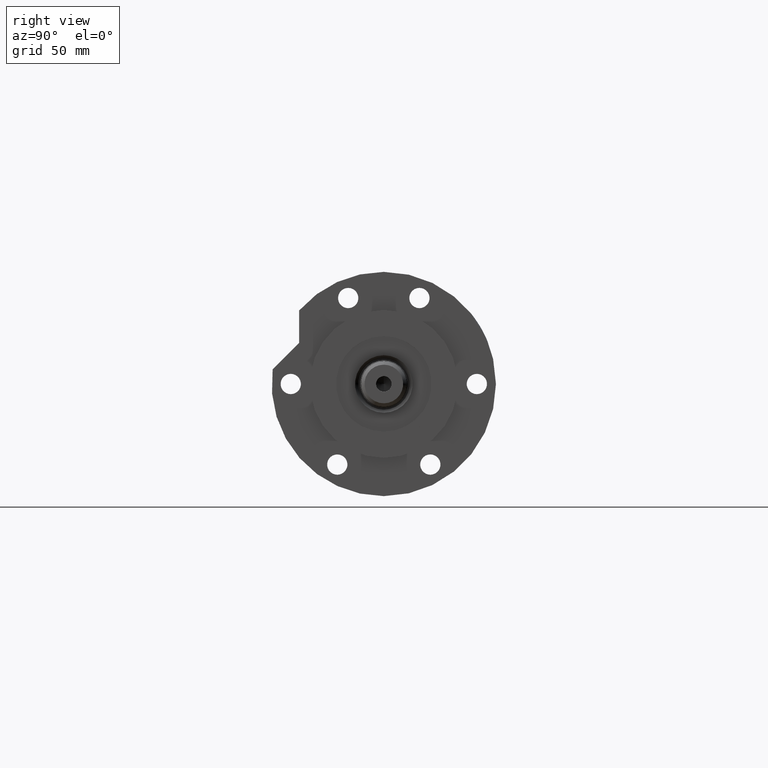
[diagram: clean part render]
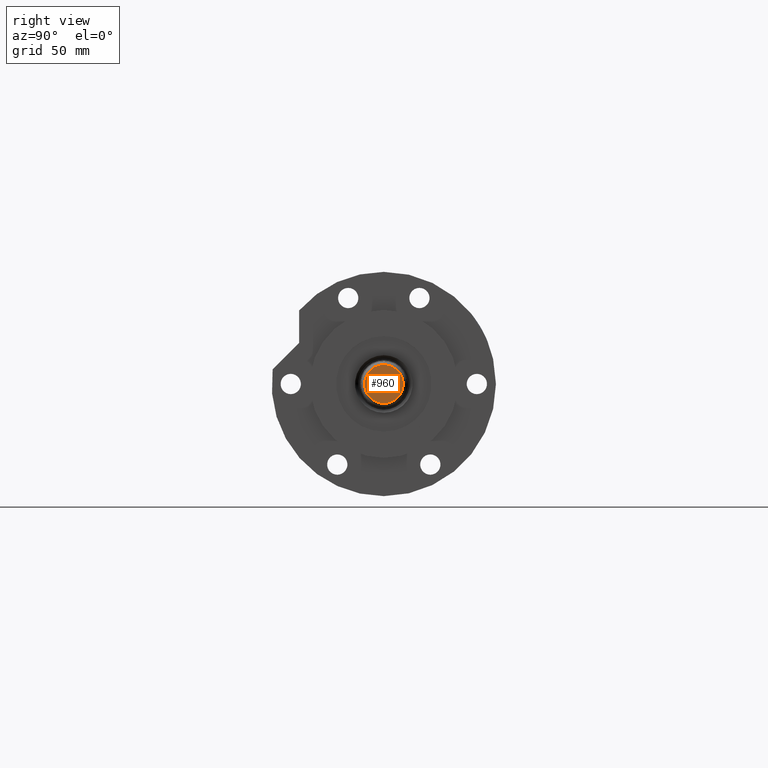
[diagram: same view with one face highlighted and labeled with its STEP entity id]
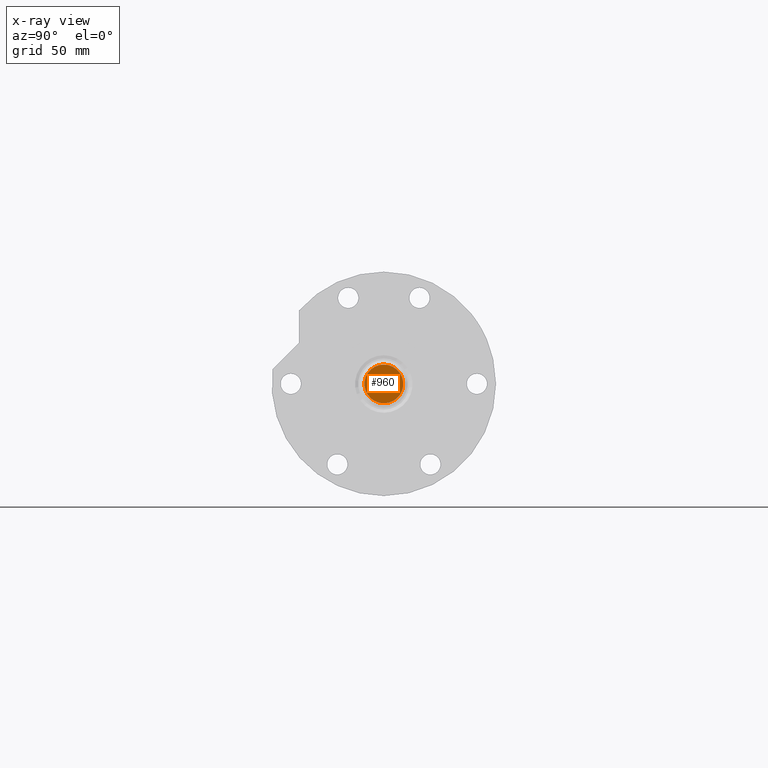
[diagram: x-ray of the same camera — body ghosted, the highlighted face saturated]
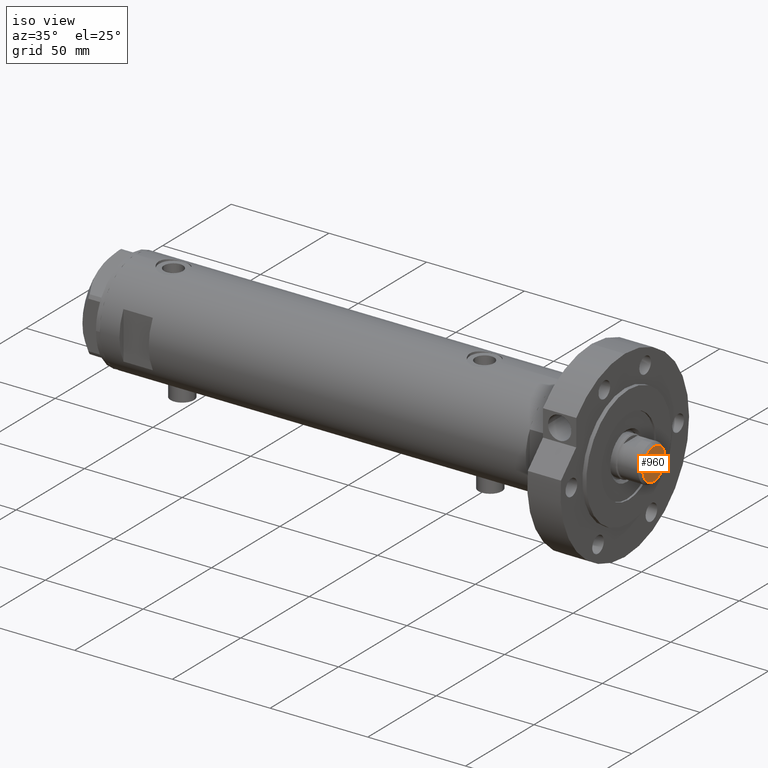
[diagram: same view with one face highlighted and labeled with its STEP entity id]
A machine part, right view. The second image highlights one B-rep face of the part: STEP entity #960.
The next image is the same camera in x-ray: the body ghosted, the highlighted face saturated — about 0% of this face is hidden behind the body in this view.
A second angle (iso view) of the same face is appended — the face is thin or edge-on in the first view.
In plain terms, the highlighted planar face has unit normal (1, 0, -0).
Its self-contained STEP definition (entity closure, byte-faithful):
#267 = DIRECTION ( 'NONE',  ( 0.000000000000000000, 0.000000000000000000, 1.000000000000000000 ) ) ;
#506 = CARTESIAN_POINT ( 'NONE',  ( 0.000000000000000000, 0.000000000000000000, 241.5000000000000284 ) ) ;
#756 = EDGE_LOOP ( 'NONE', ( #862, #4777 ) ) ;
#862 = ORIENTED_EDGE ( 'NONE', *, *, #4124, .F. ) ;
#950 = DIRECTION ( 'NONE',  ( 1.000000000000000000, 0.000000000000000000, 0.000000000000000000 ) ) ;
#960 = ADVANCED_FACE ( 'NONE', ( #3281, #5276 ), #6352, .T. ) ;
#1296 = CARTESIAN_POINT ( 'NONE',  ( 0.000000000000000000, 0.000000000000000000, 241.5000000000000284 ) ) ;
#1556 = CIRCLE ( 'NONE', #2073, 3.249999999999998224 ) ;
#1768 = CIRCLE ( 'NONE', #3547, 3.249999999999998224 ) ;
#1796 = EDGE_LOOP ( 'NONE', ( #3379, #5972 ) ) ;
#1853 = VERTEX_POINT ( 'NONE', #5467 ) ;
#1865 = DIRECTION ( 'NONE',  ( 1.000000000000000000, 0.000000000000000000, -0.000000000000000000 ) ) ;
#1932 = VERTEX_POINT ( 'NONE', #3249 ) ;
#2073 = AXIS2_PLACEMENT_3D ( 'NONE', #1296, #3814, #3229 ) ;
#2348 = CARTESIAN_POINT ( 'NONE',  ( 0.000000000000000000, 0.000000000000000000, 241.5000000000000284 ) ) ;
#2945 = CARTESIAN_POINT ( 'NONE',  ( 0.000000000000000000, 0.000000000000000000, 241.5000000000000284 ) ) ;
#3229 = DIRECTION ( 'NONE',  ( 1.000000000000000000, 0.000000000000000000, 0.000000000000000000 ) ) ;
#3249 = CARTESIAN_POINT ( 'NONE',  ( 8.100000000000051159, 1.077689183249673958E-15, 241.5000000000000284 ) ) ;
#3281 = FACE_OUTER_BOUND ( 'NONE', #1796, .T. ) ;
#3379 = ORIENTED_EDGE ( 'NONE', *, *, #4233, .T. ) ;
#3396 = DIRECTION ( 'NONE',  ( 0.000000000000000000, 0.000000000000000000, 1.000000000000000000 ) ) ;
#3440 = AXIS2_PLACEMENT_3D ( 'NONE', #5407, #6431, #3933 ) ;
#3540 = DIRECTION ( 'NONE',  ( -0.000000000000000000, -0.000000000000000000, 1.000000000000000000 ) ) ;
#3547 = AXIS2_PLACEMENT_3D ( 'NONE', #506, #3540, #950 ) ;
#3814 = DIRECTION ( 'NONE',  ( -0.000000000000000000, -0.000000000000000000, 1.000000000000000000 ) ) ;
#3933 = DIRECTION ( 'NONE',  ( 1.000000000000000000, 0.000000000000000000, 0.000000000000000000 ) ) ;
#3946 = CARTESIAN_POINT ( 'NONE',  ( 3.249999999999998224, 0.000000000000000000, 241.5000000000000284 ) ) ;
#4124 = EDGE_CURVE ( 'NONE', #4687, #5137, #1768, .T. ) ;
#4233 = EDGE_CURVE ( 'NONE', #1853, #1932, #5743, .T. ) ;
#4646 = EDGE_CURVE ( 'NONE', #1932, #1853, #5639, .T. ) ;
#4687 = VERTEX_POINT ( 'NONE', #3946 ) ;
#4777 = ORIENTED_EDGE ( 'NONE', *, *, #4852, .F. ) ;
#4852 = EDGE_CURVE ( 'NONE', #5137, #4687, #1556, .T. ) ;
#5137 = VERTEX_POINT ( 'NONE', #6197 ) ;
#5276 = FACE_BOUND ( 'NONE', #756, .T. ) ;
#5407 = CARTESIAN_POINT ( 'NONE',  ( 0.000000000000000000, 0.000000000000000000, 241.5000000000000284 ) ) ;
#5467 = CARTESIAN_POINT ( 'NONE',  ( -8.100000000000051159, 0.000000000000000000, 241.5000000000000284 ) ) ;
#5532 = AXIS2_PLACEMENT_3D ( 'NONE', #2945, #3396, #6440 ) ;
#5639 = CIRCLE ( 'NONE', #5532, 8.100000000000051159 ) ;
#5743 = CIRCLE ( 'NONE', #3440, 8.100000000000051159 ) ;
#5972 = ORIENTED_EDGE ( 'NONE', *, *, #4646, .T. ) ;
#6197 = CARTESIAN_POINT ( 'NONE',  ( -3.249999999999998224, 3.980102097228895766E-16, 241.5000000000000284 ) ) ;
#6352 = PLANE ( 'NONE',  #6494 ) ;
#6431 = DIRECTION ( 'NONE',  ( 0.000000000000000000, 0.000000000000000000, 1.000000000000000000 ) ) ;
#6440 = DIRECTION ( 'NONE',  ( 1.000000000000000000, 0.000000000000000000, 0.000000000000000000 ) ) ;
#6494 = AXIS2_PLACEMENT_3D ( 'NONE', #2348, #267, #1865 ) ;